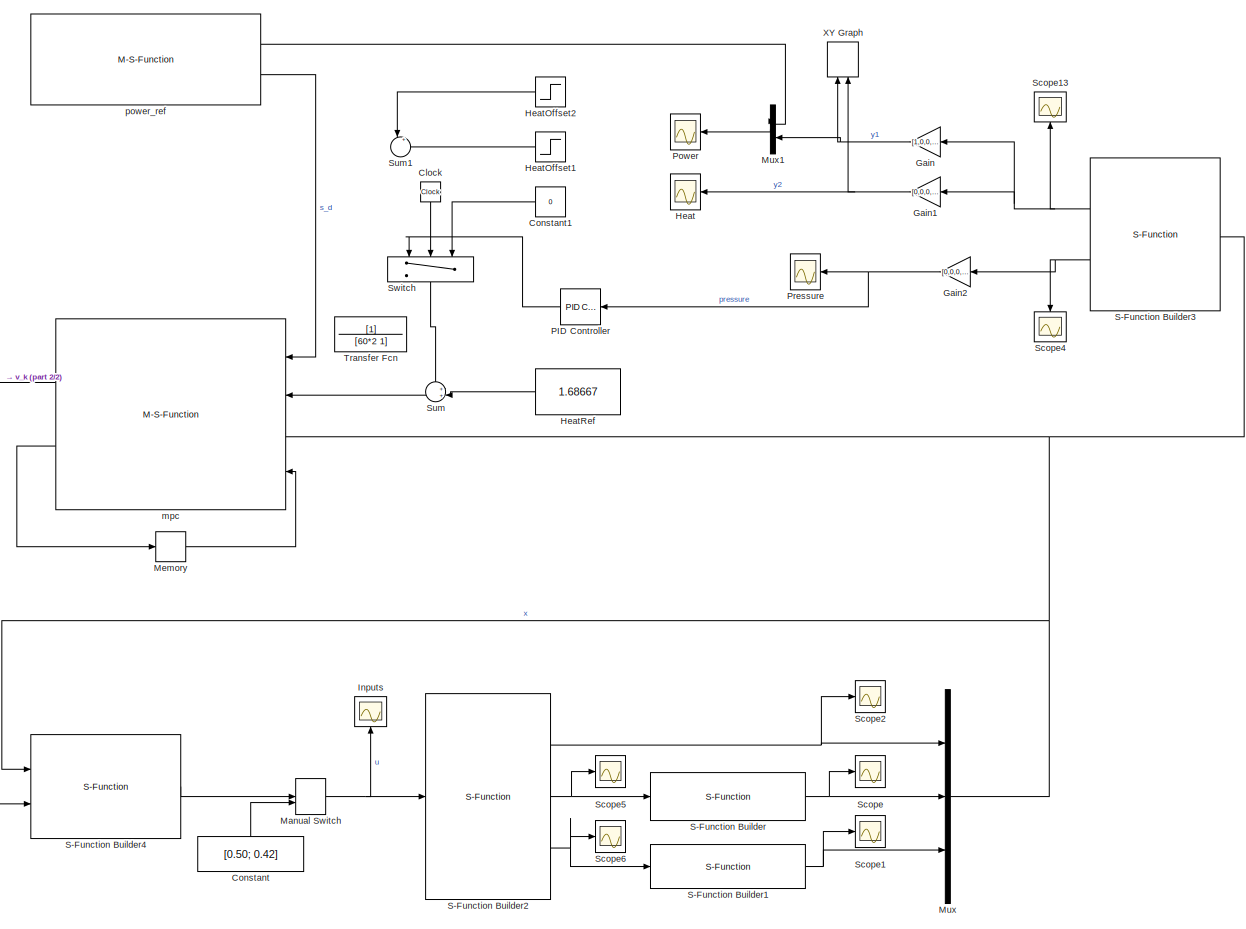
[diagram: root canvas - part 1/2, most of the canvas]
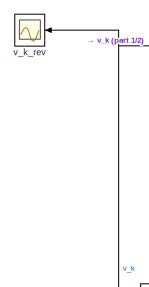
[diagram: root canvas - part 2/2, middle left region]
MODEL slx_2a3fb10717d5
KIND model
CONFIG AbsTol = auto
CONFIG EnableMultiTasking = off
CONFIG FixedStep = auto
CONFIG MaxStep = auto
CONFIG MinStep = auto
CONFIG RelTol = 1e-6
CONFIG SampleTimeConstraint = Unconstrained
CONFIG SolverName = ode45
CONFIG StartTime = -180
CONFIG StopTime = 60*40
BLOCK [Clock] Clock
  NameLocation = left
BLOCK [Constant] Constant
  NameLocation = right
  Value = [0.50; 0.42]
BLOCK [Constant] Constant1
  NameLocation = top
  Value = 0
BLOCK [Gain] Gain
  Gain = [1,0,0,0,0,0,0,0,0]
  Multiplication = Matrix(K*u) (u vector)
  NameLocation = top
BLOCK [Gain] Gain1
  Gain = [0,0,0,0,0,1,0,0,0]
  Multiplication = Matrix(K*u) (u vector)
  NameLocation = top
BLOCK [Gain] Gain2
  Gain = [0,0,0,0.5]
  Multiplication = Matrix(K*u) (u vector)
  NameLocation = top
BLOCK [Scope] Heat
  Floating = off
  NameLocation = top
  NumInputPorts = 1
  Ports = [1]
  ScopeSpecificationString = Simulink.scopes.TimeScopeBlockCfg('CurrentConfiguration', extmgr.ConfigurationSet(extmgr.Configuration('Core','General UI',true),extmgr.Configuration('Core','Source UI',true),extmgr.Configuration('Sources','WiredSimulink',true,'DataLoggingVariableName','heatflow','DataLogging',true,'DataLoggingSaveFormat','Array'),extmgr.Configuration('Visuals','Time Domain',true,'SerializedDisplays',{struct('MinY...<+1510ch>
BLOCK [Step] HeatOffset1
  After = -0.0
  Before = 0.0
  NameLocation = top
  SampleTime = 0
  Time = 60*15
BLOCK [Step] HeatOffset2
  After = 0.0+0.0
  NameLocation = top
  SampleTime = 0
  Time = 60*30
BLOCK [Constant] HeatRef
  NameLocation = top
  Value = 1.68667
BLOCK [Scope] Inputs
  Floating = off
  NameLocation = right
  NumInputPorts = 1
  Ports = [1]
  ScopeSpecificationString = Simulink.scopes.TimeScopeBlockCfg('CurrentConfiguration', extmgr.ConfigurationSet(extmgr.Configuration('Core','General UI',true),extmgr.Configuration('Core','Source UI',true),extmgr.Configuration('Sources','WiredSimulink',true,'DataLoggingVariableName','inputs','DataLogging',true,'DataLoggingSaveFormat','Array'),extmgr.Configuration('Visuals','Time Domain',true,'SerializedDisplays',{struct('MinYLi...<+1509ch>
BLOCK [ManualSwitch] Manual Switch
BLOCK [Memory] Memory
  InheritSampleTime = on
BLOCK [Mux] Mux
  DisplayOption = bar
  Inputs = 3
  Ports = [3, 1]
BLOCK [Mux] Mux1
  DisplayOption = bar
  Inputs = 2
  NameLocation = top
  Ports = [2, 1]
BLOCK [Reference] PID Controller  REF=slpidlib/PID Controller
  NameLocation = top
  Ports = [1, 1]
  SourceBlock = slpidlib/PID Controller
  SourceProductBaseCode = SL
  SourceType = PID 1dof
BLOCK [Scope] Power
  Floating = off
  NameLocation = top
  NumInputPorts = 1
  Ports = [1]
  ScopeSpecificationString = Simulink.scopes.TimeScopeBlockCfg('CurrentConfiguration', extmgr.ConfigurationSet(extmgr.Configuration('Core','General UI',true),extmgr.Configuration('Core','Source UI',true),extmgr.Configuration('Sources','WiredSimulink',true,'DataLoggingVariableName','power','DataLogging',true,'DataLoggingSaveFormat','Array'),extmgr.Configuration('Visuals','Time Domain',true,'SerializedDisplays',{struct('MinYLim...<+1548ch>
BLOCK [Scope] Pressure
  Floating = off
  NameLocation = top
  NumInputPorts = 1
  Ports = [1]
  ScopeSpecificationString = Simulink.scopes.TimeScopeBlockCfg('CurrentConfiguration', extmgr.ConfigurationSet(extmgr.Configuration('Core','General UI',true),extmgr.Configuration('Core','Source UI',true),extmgr.Configuration('Sources','WiredSimulink',true,'DataLoggingVariableName','pressure','DataLogging',true,'DataLoggingSaveFormat','Array'),extmgr.Configuration('Visuals','Time Domain',true,'SerializedDisplays',{struct('MinY...<+1464ch>
BLOCK [S-Function] S-Function Builder
  CopyFcn = set_param(gcbh,'LinkStatus','none')
  EnableBusSupport = off
  FunctionName = electric_subsystem
  InitFcn = try, set_param(gcb,'FunctionName','electric_subsystem'), end
  OpenFcn = sfunctionwizard(gcbh)
  Ports = [1, 1]
  PreSaveFcn = try, set_param(gcb,'FunctionName','electric_subsystem'), end
  SFcnIsStateOwnerBlock = off
  SFunctionDeploymentMode = off
  SFunctionModules = electric_subsystem_wrapper cforms
BLOCK [S-Function] S-Function Builder1
  CopyFcn = set_param(gcbh,'LinkStatus','none')
  EnableBusSupport = off
  FunctionName = heat_subsystem
  InitFcn = try, set_param(gcb,'FunctionName','heat_subsystem'), end
  OpenFcn = sfunctionwizard(gcbh)
  Ports = [1, 1]
  PreSaveFcn = try, set_param(gcb,'FunctionName','heat_subsystem'), end
  SFcnIsStateOwnerBlock = off
  SFunctionDeploymentMode = off
  SFunctionModules = heat_subsystem_wrapper cforms
BLOCK [S-Function] S-Function Builder2
  CopyFcn = set_param(gcbh,'LinkStatus','none')
  EnableBusSupport = off
  FunctionName = gasturbine
  InitFcn = try, set_param(gcb,'FunctionName','gasturbine'), end
  OpenFcn = sfunctionwizard(gcbh)
  Ports = [1, 3]
  PreSaveFcn = try, set_param(gcb,'FunctionName','gasturbine'), end
  SFcnIsStateOwnerBlock = off
  SFunctionDeploymentMode = off
  SFunctionModules = gasturbine_wrapper cforms
BLOCK [S-Function] S-Function Builder3
  CopyFcn = set_param(gcbh,'LinkStatus','none')
  EnableBusSupport = off
  FunctionName = state_transformation
  InitFcn = try, set_param(gcb,'FunctionName','state_transformation'), end
  NameLocation = top
  OpenFcn = sfunctionwizard(gcbh)
  Ports = [1, 2]
  PreSaveFcn = try, set_param(gcb,'FunctionName','state_transformation'), end
  SFcnIsStateOwnerBlock = off
  SFunctionDeploymentMode = off
  SFunctionModules = state_transformation_wrapper cforms
BLOCK [S-Function] S-Function Builder4
  CopyFcn = set_param(gcbh,'LinkStatus','none')
  EnableBusSupport = off
  FunctionName = input_output_linearization
  InitFcn = try, set_param(gcb,'FunctionName','input_output_linearization'), end
  OpenFcn = sfunctionwizard(gcbh)
  Ports = [2, 1]
  PreSaveFcn = try, set_param(gcb,'FunctionName','input_output_linearization'), end
  SFcnIsStateOwnerBlock = off
  SFunctionDeploymentMode = off
  SFunctionModules = input_output_linearization_wrapper cforms
BLOCK [Scope] Scope
  Floating = off
  NumInputPorts = 1
  Ports = [1]
  ScopeSpecificationString = Simulink.scopes.TimeScopeBlockCfg('CurrentConfiguration', extmgr.ConfigurationSet(extmgr.Configuration('Core','General UI',true),extmgr.Configuration('Core','Source UI',true),extmgr.Configuration('Sources','WiredSimulink',true),extmgr.Configuration('Visuals','Time Domain',true,'SerializedDisplays',{struct('MinYLimReal','-0.32278','MaxYLimReal','2.22256','YLabelReal','','MinYLimMag','0.00000','MaxY...<+1506ch>
BLOCK [Scope] Scope1
  Floating = off
  NumInputPorts = 1
  Ports = [1]
  ScopeSpecificationString = Simulink.scopes.TimeScopeBlockCfg('CurrentConfiguration', extmgr.ConfigurationSet(extmgr.Configuration('Core','General UI',true),extmgr.Configuration('Core','Source UI',true),extmgr.Configuration('Sources','WiredSimulink',true,'DataLoggingVariableName','ScopeData1'),extmgr.Configuration('Visuals','Time Domain',true,'SerializedDisplays',{struct('MinYLimReal','-1.06642','MaxYLimReal','0.79494','YLab...<+1500ch>
BLOCK [Scope] Scope13
  Floating = off
  NameLocation = right
  NumInputPorts = 1
  Ports = [1]
  ScopeSpecificationString = Simulink.scopes.TimeScopeBlockCfg('CurrentConfiguration', extmgr.ConfigurationSet(extmgr.Configuration('Core','General UI',true),extmgr.Configuration('Core','Source UI',true),extmgr.Configuration('Sources','WiredSimulink',true,'DataLoggingVariableName','ScopeData1'),extmgr.Configuration('Visuals','Time Domain',true,'SerializedDisplays',{struct('MinYLimReal','-1.88155','MaxYLimReal','2.09543','YLab...<+1872ch>
BLOCK [Scope] Scope2
  Floating = off
  NumInputPorts = 1
  Ports = [1]
  ScopeSpecificationString = Simulink.scopes.TimeScopeBlockCfg('CurrentConfiguration', extmgr.ConfigurationSet(extmgr.Configuration('Core','General UI',true),extmgr.Configuration('Core','Source UI',true),extmgr.Configuration('Sources','WiredSimulink',true,'DataLoggingVariableName','ScopeData2'),extmgr.Configuration('Visuals','Time Domain',true,'SerializedDisplays',{struct('MinYLimReal','-40.1881','MaxYLimReal','360.9268','YLa...<+1606ch>
BLOCK [Scope] Scope4
  Floating = off
  NameLocation = left
  NumInputPorts = 1
  Ports = [1]
  ScopeSpecificationString = Simulink.scopes.TimeScopeBlockCfg('CurrentConfiguration', extmgr.ConfigurationSet(extmgr.Configuration('Core','General UI',true),extmgr.Configuration('Core','Source UI',true),extmgr.Configuration('Sources','WiredSimulink',true,'DataLoggingVariableName','ScopeData4'),extmgr.Configuration('Visuals','Time Domain',true,'SerializedDisplays',{struct('MinYLimReal','-0.2393','MaxYLimReal','0.78898','YLabe...<+1543ch>
BLOCK [Scope] Scope5
  Floating = off
  NumInputPorts = 1
  Ports = [1]
  ScopeSpecificationString = Simulink.scopes.TimeScopeBlockCfg('CurrentConfiguration', extmgr.ConfigurationSet(extmgr.Configuration('Core','General UI',true),extmgr.Configuration('Core','Source UI',true),extmgr.Configuration('Sources','WiredSimulink',true,'DataLoggingVariableName','ScopeData5'),extmgr.Configuration('Visuals','Time Domain',true,'SerializedDisplays',{struct('MinYLimReal','-1.1963','MaxYLimReal','8.46682','YLabe...<+1406ch>
BLOCK [Scope] Scope6
  Floating = off
  NumInputPorts = 1
  Ports = [1]
  ScopeSpecificationString = Simulink.scopes.TimeScopeBlockCfg('CurrentConfiguration', extmgr.ConfigurationSet(extmgr.Configuration('Core','General UI',true),extmgr.Configuration('Core','Source UI',true),extmgr.Configuration('Sources','WiredSimulink',true,'DataLoggingVariableName','ScopeData6'),extmgr.Configuration('Visuals','Time Domain',true,'SerializedDisplays',{struct('MinYLimReal','0.08706','MaxYLimReal','4.12684','YLabe...<+1406ch>
BLOCK [Sum] Sum
  Inputs = ++|
  NameLocation = top
  Ports = [2, 1]
BLOCK [Sum] Sum1
  Inputs = |++
  NameLocation = left
  Ports = [2, 1]
BLOCK [Switch] Switch
  Criteria = u2 > Threshold
  InputSameDT = off
  NameLocation = left
  SaturateOnIntegerOverflow = off
BLOCK [TransferFcn] Transfer Fcn
  Denominator = [60*2 1]
  NameLocation = left
BLOCK [Record] XY Graph
  CompatibilityTag = XY
  FileSettingsInternal = {"entries":[{"content":{"excelSettings":{"content":{},"type":"Streamout.ExcelSettings"}},"type":"Streamout.FileSettingStorage","uuid":"7e2d3f37-9943-4f0d-ac7e-a4f3bbad7586"}],"packageUris":["http://schema.mathworks.com/mf0/streamout_blocks/R2020a"],"version":"1.0"}
  Layout = [1 1]
  NameLocation = right
  Ports = [2]
  SignalsInternal = {"entries":[{"content":{"signals":[{"content":{"blockPath":["twosite_system/XY Graph"],"channel":[],"dimensions":[1],"domain":"twosite_system/XY Graph","lineColor":"#a2142f","plots":[1],"port":1,"sid":[],"signalID":52867,"signalName":"y1"},"type":"RecordBlkView.Signal","uuid":"43ce5446-7282-4aef-8a2d-fbd5890c7bc5"},{"content":{"blockPath":["twosite_system/XY Graph"],"channel":[],"dimensions":[1],"...<+375ch>
  VisualizationBindings = {"xyplotplugin":{"info":[{"series":[{"bindingParametersList":[{"parameter":"X-Axis","signalID":52867,"signalName":"y1"},{"parameter":"Y-Axis","signalID":52870,"signalName":"y2"}],"seriesID":20684}],"subplotID":1}]}}
BLOCK [M-S-Function] mpc
  FunctionName = msfcn_mpc_rev
  NameLocation = top
  Parameters = Tstep, Nhorizon, Qz, Rv, Plim, u1max, u2max
  Ports = [4, 2]
BLOCK [M-S-Function] power_ref
  FunctionName = msfun_regd
  NameLocation = top
  Parameters = Pnominal, ASamplitude
  Ports = [0, 2]
BLOCK [Scope] v_k_rev
  Floating = off
  NameLocation = top
  NumInputPorts = 1
  Ports = [1]
  ScopeSpecificationString = Simulink.scopes.TimeScopeBlockCfg('CurrentConfiguration', extmgr.ConfigurationSet(extmgr.Configuration('Core','General UI',true),extmgr.Configuration('Core','Source UI',true),extmgr.Configuration('Sources','WiredSimulink',true,'DataLoggingVariableName','ScopeData1'),extmgr.Configuration('Visuals','Time Domain',true,'SerializedDisplays',{struct('MinYLimReal','-0.00019','MaxYLimReal','0.00031','YLab...<+1513ch>
LINE Clock:1 -> Switch:2
LINE Constant1:1 -> Switch:3
LINE Constant:1 -> Manual Switch:2
NET Gain1:1 -> Heat:1, XY Graph:2
NET Gain2:1 -> PID Controller:1, Pressure:1
NET Gain:1 -> Mux1:2, XY Graph:1
LINE HeatOffset1:1 -> Sum1:2
LINE HeatOffset2:1 -> Sum1:1
LINE HeatRef:1 -> Sum:2
NET Manual Switch:1 -> Inputs:1, S-Function Builder2:1
LINE Memory:1 -> mpc:4
LINE Mux1:1 -> Power:1
NET Mux:1 -> S-Function Builder3:1, S-Function Builder4:1, mpc:3
LINE PID Controller:1 -> Switch:1
NET S-Function Builder1:1 -> Mux:3, Scope1:1
NET S-Function Builder2:1 -> Mux:1, Scope2:1
NET S-Function Builder2:2 -> S-Function Builder:1, Scope5:1
NET S-Function Builder2:3 -> S-Function Builder1:1, Scope6:1
NET S-Function Builder3:1 -> Gain1:1, Gain:1, Scope13:1
NET S-Function Builder3:2 -> Gain2:1, Scope4:1
LINE S-Function Builder4:1 -> Manual Switch:1
NET S-Function Builder:1 -> Mux:2, Scope:1
LINE Sum:1 -> mpc:2
LINE Switch:1 -> Sum:1
NET mpc:1 -> S-Function Builder4:2, v_k_rev:1
LINE mpc:2 -> Memory:1
LINE power_ref:1 -> Mux1:1
LINE power_ref:2 -> mpc:1
note: NET lines group one-source signal fan-out (src -> all destinations, sorted); 1:1 wires keep LINE
